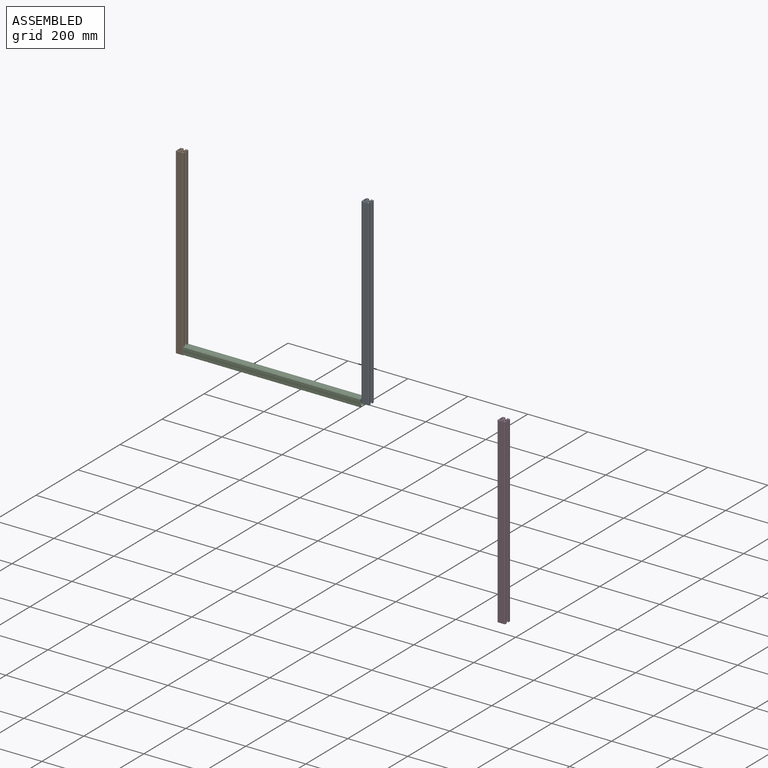
[diagram: assembled view]
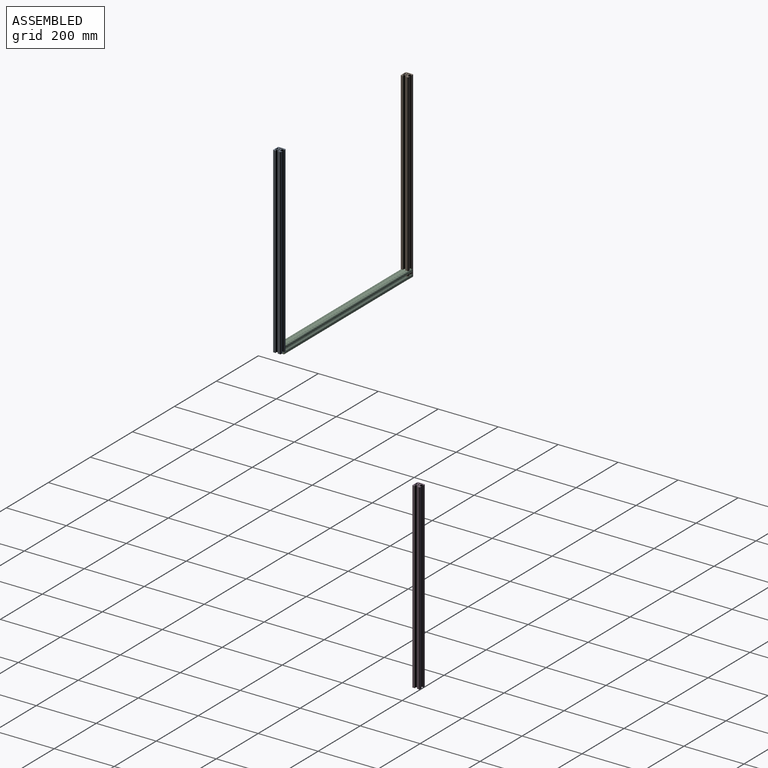
[diagram: assembled view, second angle]
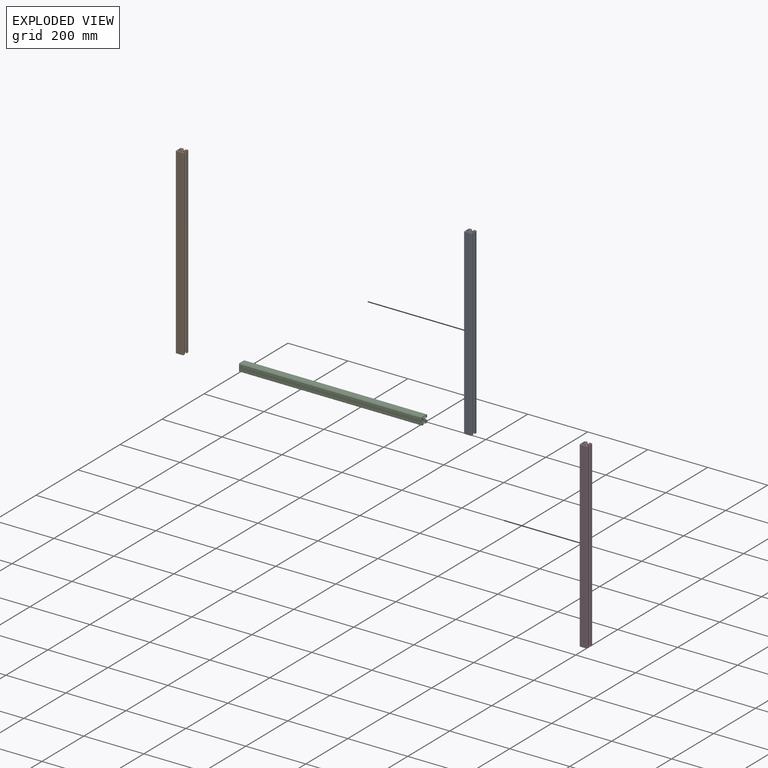
[diagram: exploded view]
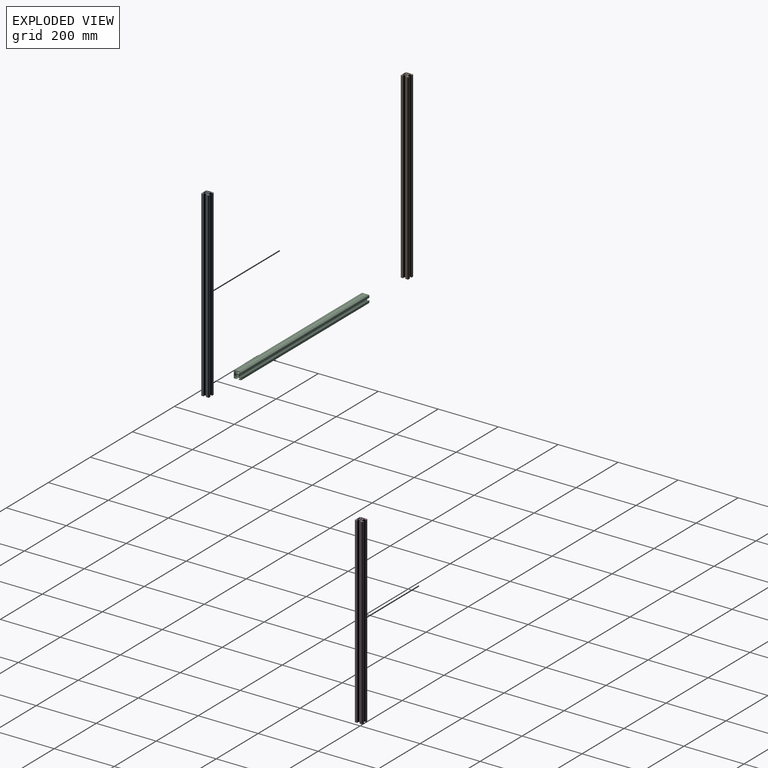
[diagram: exploded view, second angle]
ASSEMBLY  parts=4 mates=2
PART A: 83 faces, bbox 25.4x25.4x609.6 mm
  f0: cylinder r=2.6mm len=609.6mm, axis (0,0,-1), area 9972mm2, adj f9,f10
  f1: cylinder r=1.02mm len=609.6mm, axis (0,0,-1), area 1459.9mm2, adj f9,f10,f81,f82
  f2: cylinder r=2.11mm len=609.6mm, axis (0,0,-1), area 2049.7mm2, adj f9,f10,f65,f66
  f3: cylinder r=2.11mm len=609.6mm, axis (0,0,-1), area 2049.7mm2, adj f9,f10,f58,f59
  f4: cylinder r=1.02mm len=609.6mm, axis (0,0,-1), area 1459.9mm2, adj f9,f10,f50,f51
  f5: cylinder r=0.51mm len=609.6mm, axis (0,0,-1), area 972.8mm2, adj f9,f10,f35,f36
  f6: cylinder r=0.51mm len=609.6mm, axis (0,0,-1), area 972.9mm2, adj f9,f10,f34,f35
  f7: cylinder r=0.51mm len=609.6mm, axis (0,0,-1), area 972.9mm2, adj f9,f10,f17,f18
  f8: cylinder r=0.51mm len=609.6mm, axis (0,0,-1), area 972.8mm2, adj f9,f10,f16,f17
  f9: plane 25.4x25.4mm, normal (0,0,1), area 313mm2, adj f0,f1,f2,f3,f4,f5,f6,f7
  f10: plane 25.4x25.4mm, normal (0,0,-1), area 313mm2, adj f0,f1,f2,f3,f4,f5,f6,f7
  f11: cylinder r=0.51mm len=609.6mm, axis (0,0,-1), area 972.9mm2, adj f9,f10,f12,f67
  f12: plane 609.6x10.63mm, normal (0,-1,0), area 6482.6mm2, adj f9,f10,f11,f13
  f13: cylinder r=0.51mm len=609.6mm, axis (0,0,-1), area 972.9mm2, adj f9,f10,f12,f14
  f14: plane 609.6x3.22mm, normal (0,-1,0), area 1961.2mm2, adj f9,f10,f13,f15
  f15: cylinder r=0.51mm len=609.6mm, axis (0,0,-1), area 972.8mm2, adj f9,f10,f14,f16
  f16: cylinder r=2.11mm len=609.6mm, axis (0,0,-1), area 2049.7mm2, adj f8,f9,f10,f15
  f17: plane 609.6x3.22mm, normal (1,0,0), area 1961.3mm2, adj f7,f8,f9,f10
  f18: plane 609.6x1.03mm, normal (1,0,0), area 627.6mm2, adj f7,f9,f10,f19
  f19: cylinder r=1.05mm len=609.6mm, axis (0,0,-1), area 1004.5mm2, adj f9,f10,f18,f20
  f20: plane 609.6x0.11mm, normal (0,1,0), area 68.1mm2, adj f9,f10,f19,f21
  f21: cylinder r=1.05mm len=609.6mm, axis (0,0,-1), area 1004.5mm2, adj f9,f10,f20,f22
  f22: plane 609.6x2.11mm, normal (-1,0,0), area 1289mm2, adj f9,f10,f21,f23
  f23: cylinder r=1.03mm len=609.6mm, axis (0,0,-1), area 1475.1mm2, adj f9,f10,f22,f24
  f24: plane 609.6x3.3mm, normal (0.71,0.71,0), area 2839.3mm2, adj f9,f10,f23,f25
  f25: cylinder r=3.17mm len=609.6mm, axis (0,0,-1), area 1521.9mm2, adj f9,f10,f24,f26
  f26: plane 609.6x3.18mm, normal (1,0,0), area 1940.5mm2, adj f9,f10,f25,f27
  f27: cylinder r=3.17mm len=609.6mm, axis (0,0,-1), area 1521.9mm2, adj f9,f10,f26,f28
  f28: plane 609.6x3.3mm, normal (0.71,-0.71,0), area 2839.3mm2, adj f9,f10,f27,f29
  f29: cylinder r=1.03mm len=609.6mm, axis (0,0,-1), area 1475.1mm2, adj f9,f10,f28,f30
  f30: plane 609.6x2.11mm, normal (-1,0,0), area 1289mm2, adj f9,f10,f29,f31
  f31: cylinder r=1.05mm len=609.6mm, axis (0,0,-1), area 1004.5mm2, adj f9,f10,f30,f32
  f32: plane 609.6x0.11mm, normal (0,-1,0), area 68.1mm2, adj f9,f10,f31,f33
  f33: cylinder r=1.05mm len=609.6mm, axis (0,0,-1), area 1004.5mm2, adj f9,f10,f32,f34
  f34: plane 609.6x1.03mm, normal (1,0,0), area 627.7mm2, adj f6,f9,f10,f33
  f35: plane 609.6x3.22mm, normal (1,0,0), area 1961.2mm2, adj f5,f6,f9,f10
  f36: cylinder r=2.11mm len=609.6mm, axis (0,0,-1), area 2049.7mm2, adj f5,f9,f10,f37
  f37: cylinder r=0.51mm len=609.6mm, axis (0,0,-1), area 972.8mm2, adj f9,f10,f36,f38
  f38: plane 609.6x3.22mm, normal (0,1,0), area 1961.3mm2, adj f9,f10,f37,f39
  f39: cylinder r=0.51mm len=609.6mm, axis (0,0,-1), area 972.9mm2, adj f9,f10,f38,f40
  f40: plane 609.6x1.03mm, normal (0,1,0), area 627.6mm2, adj f9,f10,f39,f41
  f41: cylinder r=1.05mm len=609.6mm, axis (0,0,-1), area 1004.5mm2, adj f9,f10,f40,f42
  f42: plane 609.6x0.11mm, normal (-1,0,0), area 68.1mm2, adj f9,f10,f41,f43
  f43: cylinder r=1.05mm len=609.6mm, axis (0,0,-1), area 1004.5mm2, adj f9,f10,f42,f44
  f44: plane 609.6x2.19mm, normal (0,-1,0), area 1334.6mm2, adj f9,f10,f43,f45
  f45: cylinder r=1.03mm len=609.6mm, axis (0,0,-1), area 1485.6mm2, adj f9,f10,f44,f46
  f46: plane 609.6x3.31mm, normal (-0.71,0.71,0), area 2848.3mm2, adj f9,f10,f45,f47
  f47: cylinder r=3.17mm len=609.6mm, axis (0,0,-1), area 1518.4mm2, adj f9,f10,f46,f48
  f48: plane 609.6x3.21mm, normal (0,1,0), area 1957.4mm2, adj f9,f10,f47,f49
  f49: cylinder r=3.17mm len=609.6mm, axis (0,0,-1), area 1518.4mm2, adj f9,f10,f48,f50
  f50: plane 609.6x3.34mm, normal (0.71,0.71,0), area 2874.7mm2, adj f4,f9,f10,f49
  f51: plane 609.6x2.13mm, normal (0,-1,0), area 1297.8mm2, adj f4,f9,f10,f52
  f52: cylinder r=1.05mm len=609.6mm, axis (0,0,-1), area 1004.5mm2, adj f9,f10,f51,f53
  f53: plane 609.6x0.11mm, normal (1,0,0), area 68.1mm2, adj f9,f10,f52,f54
  f54: cylinder r=1.05mm len=609.6mm, axis (0,0,-1), area 1004.5mm2, adj f9,f10,f53,f55
  f55: plane 609.6x1.03mm, normal (0,1,0), area 627.7mm2, adj f9,f10,f54,f56
  f56: cylinder r=0.51mm len=609.6mm, axis (0,0,-1), area 972.9mm2, adj f9,f10,f55,f57
  f57: plane 609.6x3.22mm, normal (0,1,0), area 1961.2mm2, adj f9,f10,f56,f58
  f58: cylinder r=0.51mm len=609.6mm, axis (0,0,-1), area 972.8mm2, adj f3,f9,f10,f57
  f59: cylinder r=0.51mm len=609.6mm, axis (0,0,-1), area 972.8mm2, adj f3,f9,f10,f60
  f60: plane 609.6x3.22mm, normal (-1,0,0), area 1961.2mm2, adj f9,f10,f59,f61
  f61: cylinder r=0.51mm len=609.6mm, axis (0,0,-1), area 972.9mm2, adj f9,f10,f60,f62
  f62: plane 609.6x10.63mm, normal (-1,0,0), area 6482.6mm2, adj f9,f10,f61,f63
  f63: cylinder r=0.51mm len=609.6mm, axis (0,0,-1), area 972.9mm2, adj f9,f10,f62,f64
  f64: plane 609.6x3.22mm, normal (-1,0,0), area 1961.3mm2, adj f9,f10,f63,f65
  f65: cylinder r=0.51mm len=609.6mm, axis (0,0,-1), area 972.8mm2, adj f2,f9,f10,f64
  f66: cylinder r=0.51mm len=609.6mm, axis (0,0,-1), area 972.8mm2, adj f2,f9,f10,f67
  f67: plane 609.6x3.22mm, normal (0,-1,0), area 1961.3mm2, adj f9,f10,f11,f66
  f68: cylinder r=1.02mm len=609.6mm, axis (0,0,-1), area 1461.3mm2, adj f9,f10,f69,f75
  f69: plane 609.6x3.31mm, normal (-0.71,0.71,0), area 2853.5mm2, adj f9,f10,f68,f70
  f70: cylinder r=3.17mm len=609.6mm, axis (0,0,-1), area 1521.9mm2, adj f9,f10,f69,f71
  f71: plane 609.6x3.18mm, normal (-1,0,0), area 1940.5mm2, adj f9,f10,f70,f72
  f72: cylinder r=3.17mm len=609.6mm, axis (0,0,-1), area 1521.9mm2, adj f9,f10,f71,f73
  f73: plane 609.6x3.3mm, normal (-0.71,-0.71,0), area 2839.3mm2, adj f9,f10,f72,f74
  f74: cylinder r=1.03mm len=609.6mm, axis (0,0,-1), area 1475.1mm2, adj f9,f10,f73,f75
  f75: plane 609.6x12.83mm, normal (1,0,0), area 7819.6mm2, adj f9,f10,f68,f74
  f76: cylinder r=1.02mm len=609.6mm, axis (0,0,-1), area 1464.9mm2, adj f9,f10,f77,f82
  f77: plane 609.6x3.25mm, normal (-0.71,-0.71,0), area 2797.1mm2, adj f9,f10,f76,f78
  f78: cylinder r=3.17mm len=609.6mm, axis (0,0,-1), area 1518.4mm2, adj f9,f10,f77,f79
  f79: plane 609.6x3.31mm, normal (0,-1,0), area 2020.6mm2, adj f9,f10,f78,f80
  f80: cylinder r=3.17mm len=609.6mm, axis (0,0,-1), area 1518.4mm2, adj f9,f10,f79,f81
  f81: plane 609.6x3.25mm, normal (0.71,-0.71,0), area 2802.2mm2, adj f1,f9,f10,f80
  f82: plane 609.6x12.86mm, normal (0,1,0), area 7841.6mm2, adj f1,f9,f10,f76
PART B: same geometry as A
PART C: same geometry as A
PART D: same geometry as A
PLACE A t=(460.94,-106.7,0.88)mm
PLACE B t=(-154.21,-112.07,-10.16)mm
PLACE C rot(axis=(0,1,0),90deg) t=(143.44,-111.2,-302.26)mm fixed
PLACE D t=(547.56,418.35,-836.07)mm
MATE fastened C.f17 <-> B.f10  axis (0,0,-1) through (-161.36,-120.75,-314.96)mm
MATE fastened A.f62 <-> C.f9  axis (-1,0,0) through (448.24,-106.7,-303.92)mm
